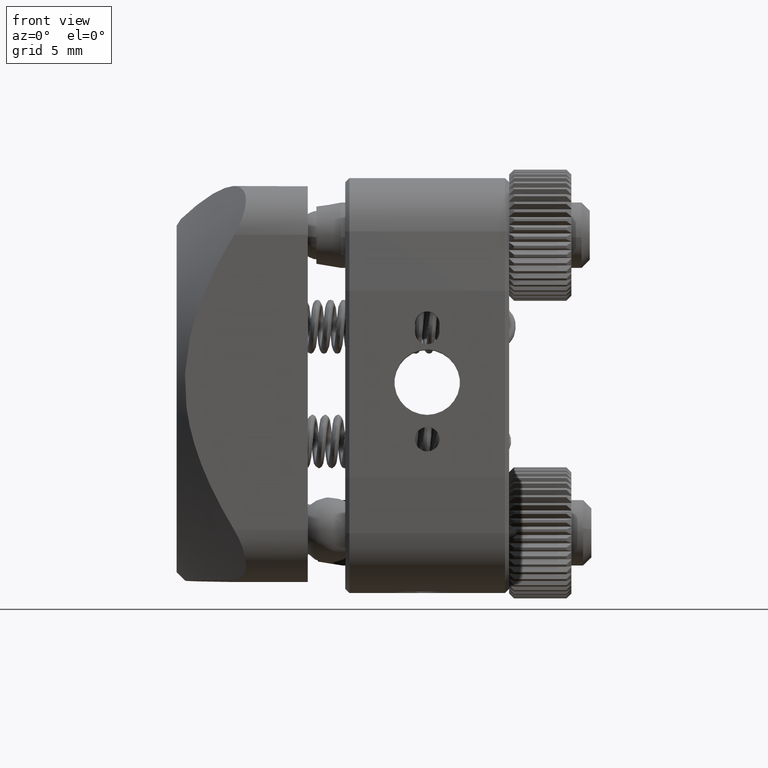
[diagram: clean part render]
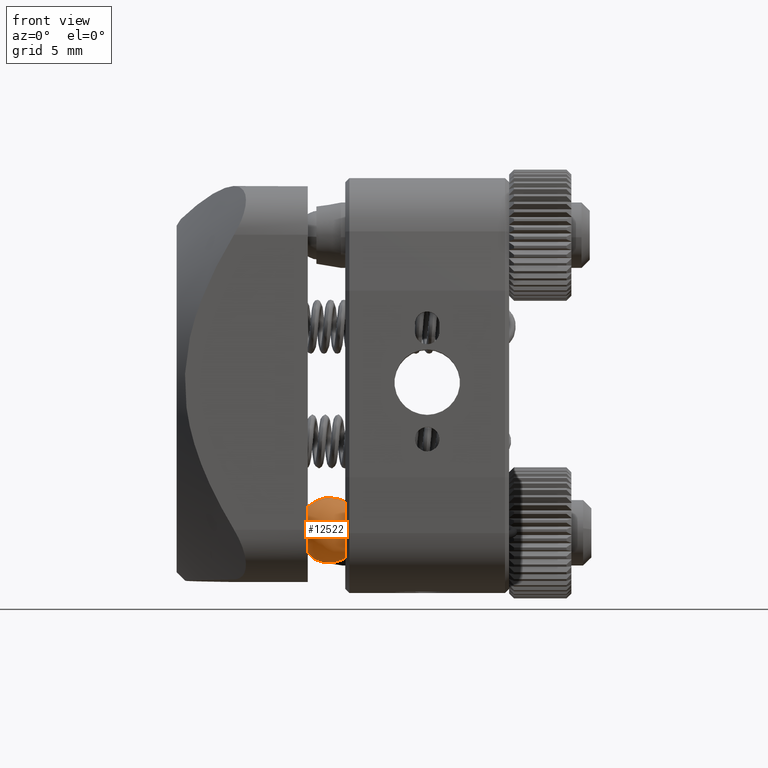
[diagram: same view with one face highlighted and labeled with its STEP entity id]
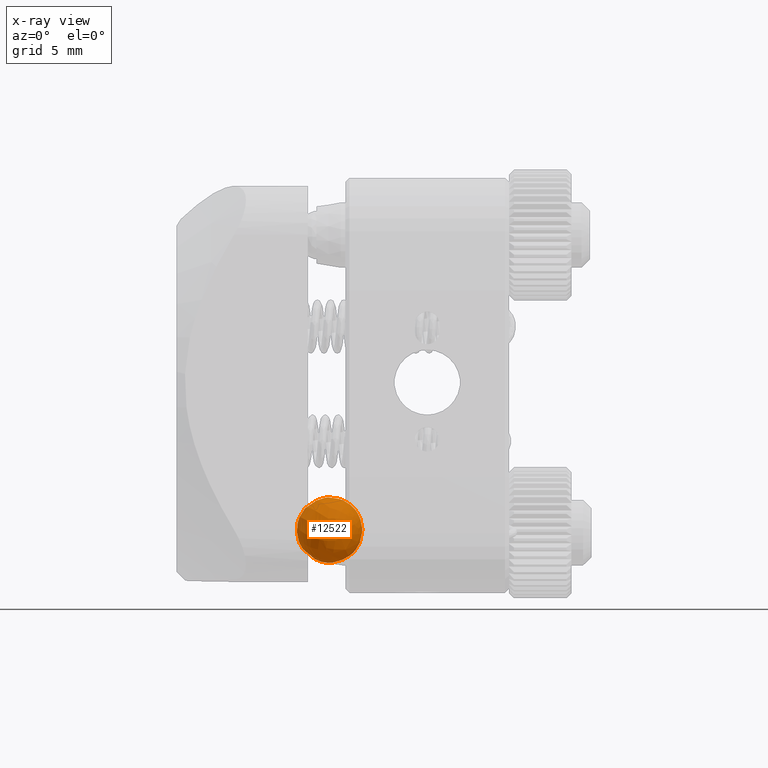
[diagram: x-ray of the same camera — body ghosted, the highlighted face saturated]
A machine part, front view. The second image highlights one B-rep face of the part: STEP entity #12522.
The next image is the same camera in x-ray: the body ghosted, the highlighted face saturated — about 0% of this face is hidden behind the body in this view.
In plain terms, the highlighted face is a freeform B-spline surface patch.
Its self-contained STEP definition (entity closure, byte-faithful):
#1846 = CARTESIAN_POINT ( 'NONE',  ( -8.283335018154787122, -8.134921985542765910, 16.91228897617474658 ) ) ;
#3051 = CARTESIAN_POINT ( 'NONE',  ( -6.388275104133637861, 1.455402710292945212, 17.57139454489174923 ) ) ;
#3680 =( BOUNDED_SURFACE ( )  B_SPLINE_SURFACE ( 3, 3, ( 
 ( #4501, #10173, #33940, #1846, #12665, #34290, #9998 ),
 ( #34470, #31284, #15153, #23308, #20825, #26309, #34109 ),
 ( #9816, #31635, #7355, #18164, #29142, #3051, #32325 ),
 ( #18512, #13533, #18686, #5197, #10689, #16362, #29320 ) ),
 .UNSPECIFIED., .F., .T., .T. ) 
 B_SPLINE_SURFACE_WITH_KNOTS ( ( 4, 4 ),
 ( 4, 3, 4 ),
 ( 0.000000000000000000, 1.000000000000000000 ),
 ( 0.000000000000000000, 0.5000000000000000000, 1.000000000000000000 ),
 .UNSPECIFIED. ) 
 GEOMETRIC_REPRESENTATION_ITEM ( )  RATIONAL_B_SPLINE_SURFACE ( (
 ( 1.000000000000000000, 0.3333333333333333148, 0.3333333333333333148, 1.000000000000000000, 0.3333333333333333148, 0.3333333333333333148, 1.000000000000000000),
 ( 0.3333333333333333703, 0.1111111111111111188, 0.1111111111111111188, 0.3333333333333333703, 0.1111111111111111188, 0.1111111111111111188, 0.3333333333333333703),
 ( 0.3333333333333333703, 0.1111111111111111188, 0.1111111111111111188, 0.3333333333333333703, 0.1111111111111111188, 0.1111111111111111188, 0.3333333333333333703),
 ( 1.000000000000000000, 0.3333333333333333148, 0.3333333333333333148, 1.000000000000000000, 0.3333333333333333148, 0.3333333333333333148, 1.000000000000000000) ) ) 
 REPRESENTATION_ITEM ( '' )  SURFACE ( )  );
#4501 = CARTESIAN_POINT ( 'NONE',  ( -8.283335018154790674, -8.134921985542769463, 16.91228897617474658 ) ) ;
#5197 = CARTESIAN_POINT ( 'NONE',  ( -11.36560981710695373, -5.788927776798136193, 15.91434447056281876 ) ) ;
#7355 = CARTESIAN_POINT ( 'NONE',  ( -16.34294453008027048, -13.03325826388922337, 14.25729439623388828 ) ) ;
#9816 = CARTESIAN_POINT ( 'NONE',  ( -11.48182984295279674, -4.354099664910181744, 19.64633605615467715 ) ) ;
#9998 = CARTESIAN_POINT ( 'NONE',  ( -8.283335018154790674, -8.134921985542769463, 16.91228897617474658 ) ) ;
#10173 = CARTESIAN_POINT ( 'NONE',  ( -8.283335018154790674, -8.134921985542767686, 16.91228897617474658 ) ) ;
#10689 = CARTESIAN_POINT ( 'NONE',  ( -11.36560981710695373, -5.788927776798136193, 15.91434447056281343 ) ) ;
#12522 = ADVANCED_FACE ( 'NONE', ( ), #3680, .T. ) ;
#12665 = CARTESIAN_POINT ( 'NONE',  ( -8.283335018154788898, -8.134921985542765910, 16.91228897617475369 ) ) ;
#13533 = CARTESIAN_POINT ( 'NONE',  ( -11.36560981710695728, -5.788927776798136193, 15.91434447056281343 ) ) ;
#15153 = CARTESIAN_POINT ( 'NONE',  ( -13.26066973112810388, -15.37925247263385131, 15.25523890184581077 ) ) ;
#16362 = CARTESIAN_POINT ( 'NONE',  ( -11.36560981710695373, -5.788927776798138858, 15.91434447056281343 ) ) ;
#18164 = CARTESIAN_POINT ( 'NONE',  ( -11.24938979126111072, -7.223755888686093307, 12.18235288497095858 ) ) ;
#18512 = CARTESIAN_POINT ( 'NONE',  ( -11.36560981710695550, -5.788927776798136193, 15.91434447056281876 ) ) ;
#18686 = CARTESIAN_POINT ( 'NONE',  ( -11.36560981710695373, -5.788927776798137970, 15.91434447056281343 ) ) ;
#20825 = CARTESIAN_POINT ( 'NONE',  ( -3.073560253489788785, -3.760247722227594291, 11.10535587931996204 ) ) ;
#23308 = CARTESIAN_POINT ( 'NONE',  ( -8.167114992308944110, -9.569750097430722136, 13.18029739058288641 ) ) ;
#26309 = CARTESIAN_POINT ( 'NONE',  ( -3.306000305181472587, -0.8905914984516866140, 18.56933905050367883 ) ) ;
#29142 = CARTESIAN_POINT ( 'NONE',  ( -6.155835052441952726, -1.414253513482962576, 10.10741137370802534 ) ) ;
#29320 = CARTESIAN_POINT ( 'NONE',  ( -11.36560981710695550, -5.788927776798136193, 15.91434447056281876 ) ) ;
#31284 = CARTESIAN_POINT ( 'NONE',  ( -13.49310978281979345, -12.50959624885794597, 22.71922207302953467 ) ) ;
#31635 = CARTESIAN_POINT ( 'NONE',  ( -16.57538458177195650, -10.16360204011331092, 21.72127756741761218 ) ) ;
#32325 = CARTESIAN_POINT ( 'NONE',  ( -11.48182984295279674, -4.354099664910181744, 19.64633605615467715 ) ) ;
#33940 = CARTESIAN_POINT ( 'NONE',  ( -8.283335018154787122, -8.134921985542767686, 16.91228897617473592 ) ) ;
#34109 = CARTESIAN_POINT ( 'NONE',  ( -8.399555044000631909, -6.700093873654814125, 20.64428056176660675 ) ) ;
#34290 = CARTESIAN_POINT ( 'NONE',  ( -8.283335018154790674, -8.134921985542771239, 16.91228897617475013 ) ) ;
#34470 = CARTESIAN_POINT ( 'NONE',  ( -8.399555044000631909, -6.700093873654814125, 20.64428056176660675 ) ) ;